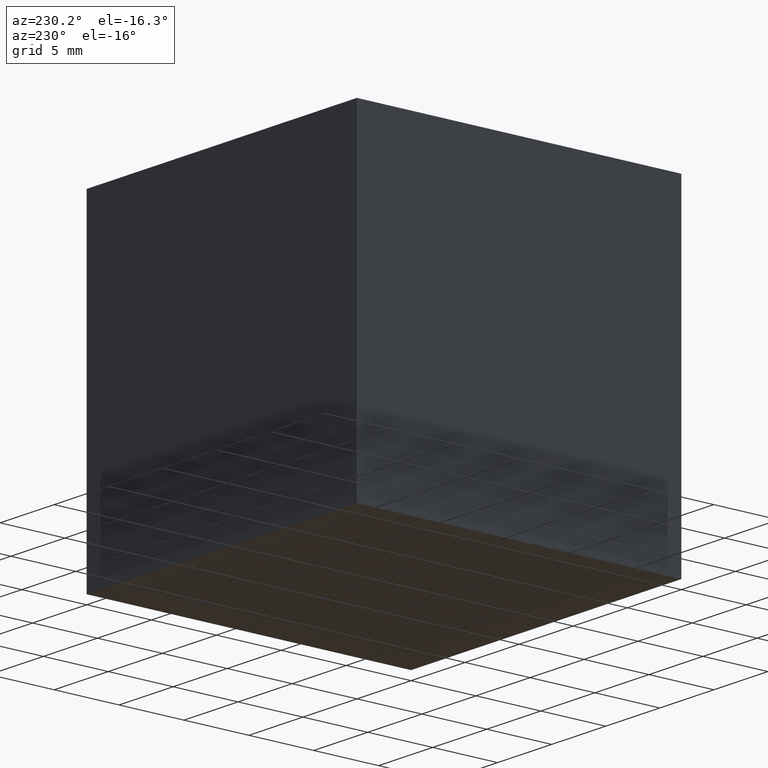
[diagram: clean part render]
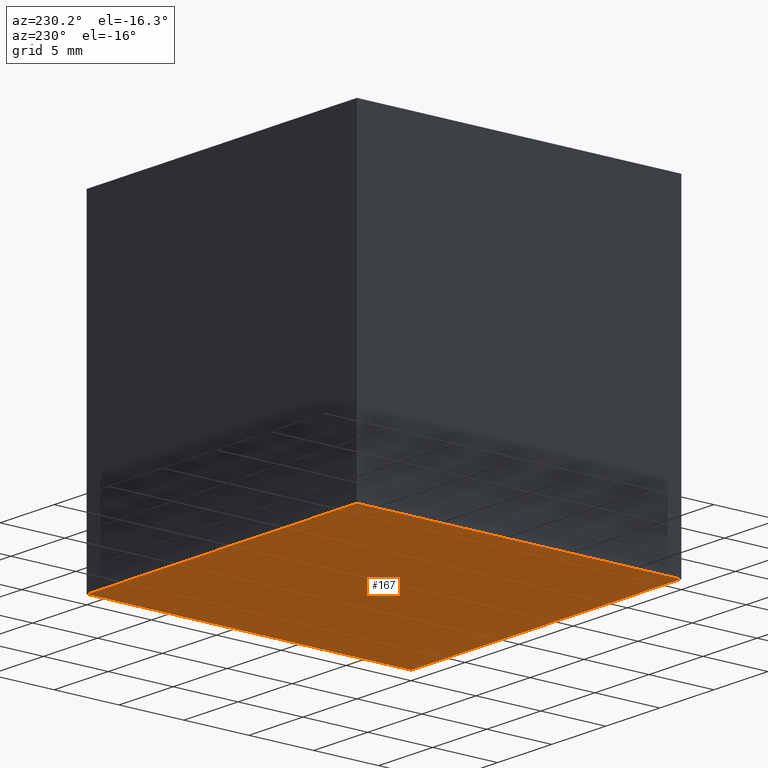
[diagram: same view with one face highlighted and labeled with its STEP entity id]
A machine part, auxiliary view. The second image highlights one B-rep face of the part: STEP entity #167.
In plain terms, the highlighted planar face has unit normal (0, -0, 1).
Its self-contained STEP definition (entity closure, byte-faithful):
#31 = DIRECTION ( 'NONE',  ( -1.000000000000000000, 0.0000000000000000000, 0.0000000000000000000 ) ) ;
#32 = VERTEX_POINT ( 'NONE', #249 ) ;
#47 = DIRECTION ( 'NONE',  ( -0.0000000000000000000, -1.000000000000000000, -0.0000000000000000000 ) ) ;
#55 = CARTESIAN_POINT ( 'NONE',  ( -25.00000000000000000, 25.00000000000000000, -25.00000000000000000 ) ) ;
#56 = VERTEX_POINT ( 'NONE', #243 ) ;
#60 = LINE ( 'NONE', #103, #127 ) ;
#70 = EDGE_LOOP ( 'NONE', ( #191, #218, #107, #220 ) ) ;
#82 = LINE ( 'NONE', #55, #116 ) ;
#83 = VERTEX_POINT ( 'NONE', #260 ) ;
#102 = PLANE ( 'NONE',  #109 ) ;
#103 = CARTESIAN_POINT ( 'NONE',  ( 0.0000000000000000000, 25.00000000000000000, -25.00000000000000000 ) ) ;
#107 = ORIENTED_EDGE ( 'NONE', *, *, #183, .F. ) ;
#109 = AXIS2_PLACEMENT_3D ( 'NONE', #242, #113, #266 ) ;
#113 = DIRECTION ( 'NONE',  ( 0.0000000000000000000, -0.0000000000000000000, 1.000000000000000000 ) ) ;
#116 = VECTOR ( 'NONE', #47, 1000.000000000000000 ) ;
#127 = VECTOR ( 'NONE', #181, 1000.000000000000000 ) ;
#159 = EDGE_CURVE ( 'NONE', #83, #32, #204, .T. ) ;
#167 = ADVANCED_FACE ( 'NONE', ( #171 ), #102, .F. ) ;
#170 = VERTEX_POINT ( 'NONE', #197 ) ;
#171 = FACE_OUTER_BOUND ( 'NONE', #70, .T. ) ;
#175 = CARTESIAN_POINT ( 'NONE',  ( 0.0000000000000000000, 25.00000000000000000, -25.00000000000000000 ) ) ;
#181 = DIRECTION ( 'NONE',  ( -1.000000000000000000, 0.0000000000000000000, 0.0000000000000000000 ) ) ;
#183 = EDGE_CURVE ( 'NONE', #83, #170, #60, .T. ) ;
#191 = ORIENTED_EDGE ( 'NONE', *, *, #264, .T. ) ;
#195 = VECTOR ( 'NONE', #273, 1000.000000000000000 ) ;
#197 = CARTESIAN_POINT ( 'NONE',  ( -25.00000000000000000, 25.00000000000000000, -25.00000000000000000 ) ) ;
#204 = LINE ( 'NONE', #175, #195 ) ;
#205 = EDGE_CURVE ( 'NONE', #170, #56, #82, .T. ) ;
#218 = ORIENTED_EDGE ( 'NONE', *, *, #205, .F. ) ;
#220 = ORIENTED_EDGE ( 'NONE', *, *, #159, .T. ) ;
#236 = VECTOR ( 'NONE', #31, 1000.000000000000000 ) ;
#242 = CARTESIAN_POINT ( 'NONE',  ( 0.0000000000000000000, 25.00000000000000000, -25.00000000000000000 ) ) ;
#243 = CARTESIAN_POINT ( 'NONE',  ( -25.00000000000000000, 0.0000000000000000000, -25.00000000000000000 ) ) ;
#249 = CARTESIAN_POINT ( 'NONE',  ( 0.0000000000000000000, 0.0000000000000000000, -25.00000000000000000 ) ) ;
#260 = CARTESIAN_POINT ( 'NONE',  ( 0.0000000000000000000, 25.00000000000000000, -25.00000000000000000 ) ) ;
#264 = EDGE_CURVE ( 'NONE', #32, #56, #274, .T. ) ;
#266 = DIRECTION ( 'NONE',  ( 1.000000000000000000, 0.0000000000000000000, -0.0000000000000000000 ) ) ;
#273 = DIRECTION ( 'NONE',  ( -0.0000000000000000000, -1.000000000000000000, -0.0000000000000000000 ) ) ;
#274 = LINE ( 'NONE', #290, #236 ) ;
#290 = CARTESIAN_POINT ( 'NONE',  ( 0.0000000000000000000, 0.0000000000000000000, -25.00000000000000000 ) ) ;